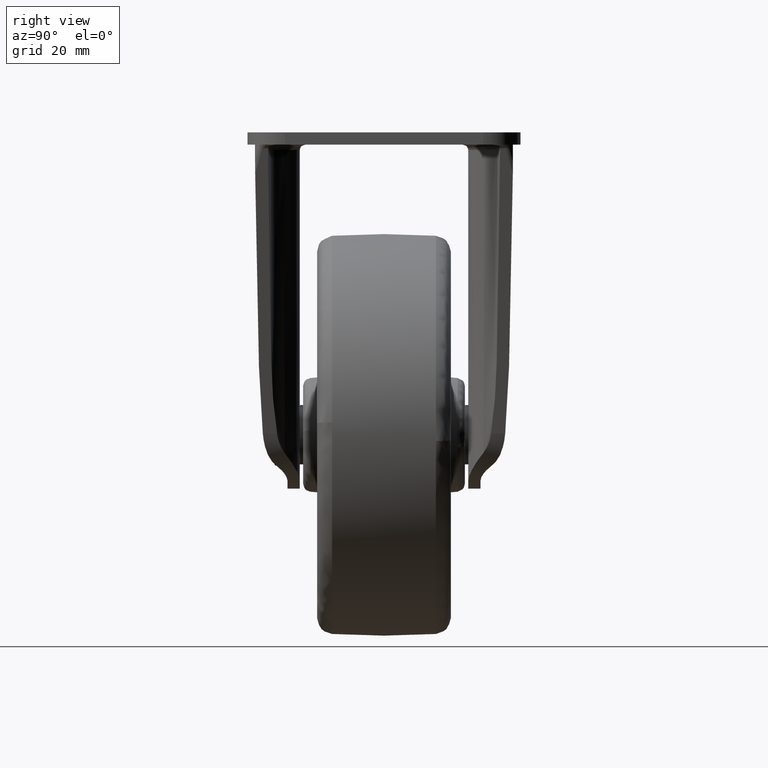
[diagram: clean part render]
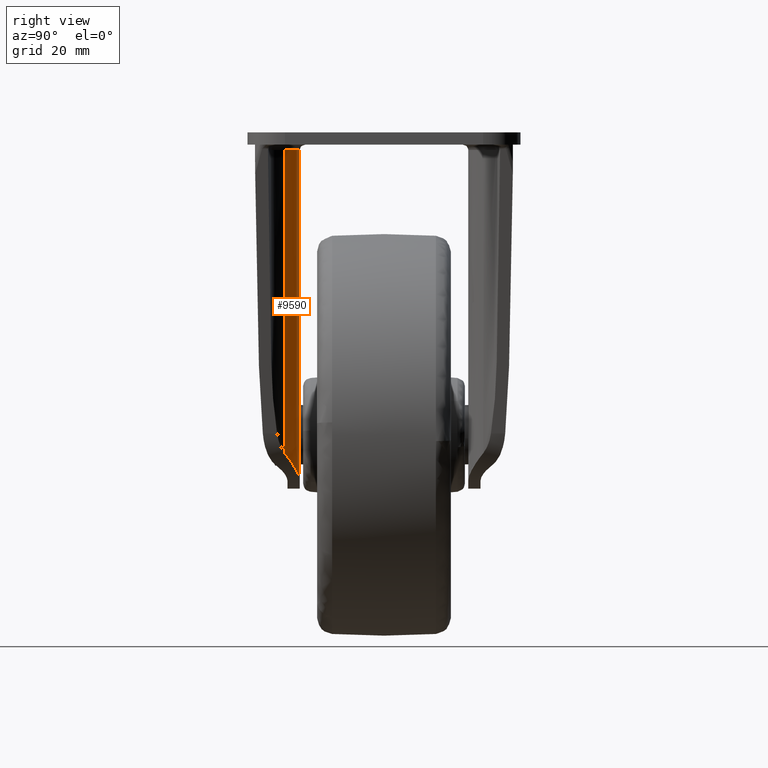
[diagram: same view with one face highlighted and labeled with its STEP entity id]
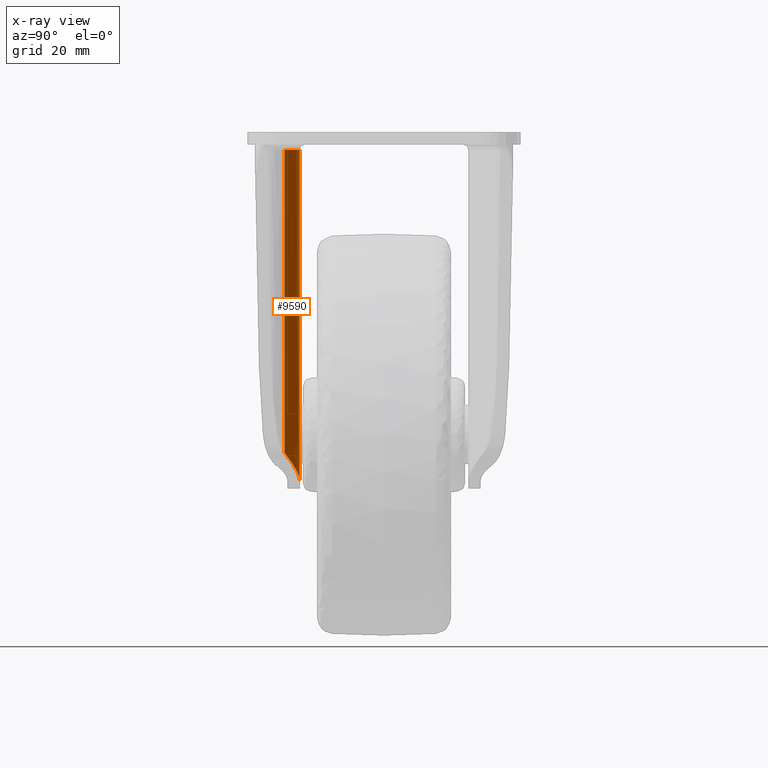
[diagram: x-ray of the same camera — body ghosted, the highlighted face saturated]
A machine part, right view. The second image highlights one B-rep face of the part: STEP entity #9590.
The next image is the same camera in x-ray: the body ghosted, the highlighted face saturated — about 0% of this face is hidden behind the body in this view.
In plain terms, the highlighted face is a freeform B-spline surface patch.
Its self-contained STEP definition (entity closure, byte-faithful):
#7977=CARTESIAN_POINT('',(6.0,-15.725000000000000,-3.300000000000000));
#7978=VERTEX_POINT('',#7977);
#8025=CARTESIAN_POINT('',(11.351696789401281,-18.559973133057149,-3.300000000000000));
#8026=VERTEX_POINT('',#8025);
#8040=CARTESIAN_POINT('',(6.0,-15.725000000000000,-3.300000000000000));
#8041=CARTESIAN_POINT('',(9.426737980748751,-15.725000373743757,-3.300000000000000));
#8042=CARTESIAN_POINT('',(11.351696789401281,-18.559973133057149,-3.300000000000000));
#8050=(BOUNDED_CURVE()B_SPLINE_CURVE(2,(#8040,#8041,#8042),.UNSPECIFIED.,.F.,.U.)CURVE()GEOMETRIC_REPRESENTATION_ITEM()QUASI_UNIFORM_CURVE()RATIONAL_B_SPLINE_CURVE((1.0,0.883670409937065,1.0))REPRESENTATION_ITEM(''));
#8051=EDGE_CURVE('',#7978,#8026,#8050,.T.);
#9318=CARTESIAN_POINT('',(6.0,-15.725000000000000,-65.082561720332805));
#9319=VERTEX_POINT('',#9318);
#9333=CARTESIAN_POINT('',(11.351697890259061,-18.559972385569651,-59.885530280055313));
#9334=VERTEX_POINT('',#9333);
#9335=CARTESIAN_POINT('',(11.351697890259061,-18.559972385569619,-59.885530280055278));
#9336=CARTESIAN_POINT('',(11.283974180258120,-18.460232696627500,-60.006874343749963));
#9337=CARTESIAN_POINT('',(11.213454623829969,-18.362365558172279,-60.128656162013591));
#9338=CARTESIAN_POINT('',(11.066601950734730,-18.170176798261441,-60.372800182898423));
#9339=CARTESIAN_POINT('',(10.990592652635771,-18.076285843763401,-60.494619079020829));
#9340=CARTESIAN_POINT('',(10.755012406680310,-17.801364673473270,-60.858432661187820));
#9341=CARTESIAN_POINT('',(10.587762940303049,-17.626849617433169,-61.099015147402362));
#9342=CARTESIAN_POINT('',(10.231636161338880,-17.295038933026571,-61.575084074653503));
#9343=CARTESIAN_POINT('',(10.042765491551640,-17.137750451689971,-61.810580573168600));
#9344=CARTESIAN_POINT('',(9.741760407541710,-16.915527877779031,-62.159394592496497));
#9345=CARTESIAN_POINT('',(9.638469158526398,-16.843748536786059,-62.274929219601241));
#9346=CARTESIAN_POINT('',(9.425634128754030,-16.705035176061831,-62.504434570449057));
#9347=CARTESIAN_POINT('',(9.315957264544988,-16.638025026991048,-62.618538912310463));
#9348=CARTESIAN_POINT('',(8.977784766801955,-16.445277573618839,-62.957510759903911));
#9349=CARTESIAN_POINT('',(8.742437203610693,-16.329036768933459,-63.176801795176488));
#9350=CARTESIAN_POINT('',(8.250683636275815,-16.123311325962440,-63.601454613845682));
#9351=CARTESIAN_POINT('',(7.994287054636360,-16.033808949885660,-63.806820067291397));
#9352=CARTESIAN_POINT('',(7.592376712705312,-15.922513518481340,-64.103840425753319));
#9353=CARTESIAN_POINT('',(7.455513789426312,-15.889255615797371,-64.201007103439082));
#9354=CARTESIAN_POINT('',(7.175642540737873,-15.831122505422860,-64.391530887112964));
#9355=CARTESIAN_POINT('',(7.032229869325306,-15.806217806313059,-64.485118718952236));
#9356=CARTESIAN_POINT('',(6.598216115980477,-15.746099922025200,-64.756244433756066));
#9357=CARTESIAN_POINT('',(6.302364609412559,-15.725000000000000,-64.925251699981061));
#9358=CARTESIAN_POINT('',(5.999999999999991,-15.725000000000000,-65.082561720332791));
#9359=B_SPLINE_CURVE_WITH_KNOTS('',3,(#9335,#9336,#9337,#9338,#9339,#9340,#9341,#9342,#9343,#9344,#9345,#9346,#9347,#9348,#9349,#9350,#9351,#9352,#9353,#9354,#9355,#9356,#9357,#9358),.UNSPECIFIED.,.F.,.U.,(4,2,2,2,2,2,2,2,2,2,2,4),(0.0,0.062499999999999,0.124999999999999,0.249999999999999,0.374999999999998,0.437499999999998,0.499999999999997,0.624999999999997,0.749999999999998,0.812499999999999,0.874999999999999,1.0),.UNSPECIFIED.);
#9360=EDGE_CURVE('',#9334,#9319,#9359,.T.);
#9551=CARTESIAN_POINT('',(6.0,-15.725000000000000,-65.082561720332805));
#9552=CARTESIAN_POINT('',(6.0,-15.725000000000000,-3.300000000000000));
#9553=QUASI_UNIFORM_CURVE('',1,(#9551,#9552),.UNSPECIFIED.,.F.,.U.);
#9554=EDGE_CURVE('',#9319,#7978,#9553,.T.);
#9566=CARTESIAN_POINT('',(5.810726054857510,-15.727769624747330,-66.627125763341127));
#9567=CARTESIAN_POINT('',(5.810726054857510,-15.727769624747330,-1.716821855916464));
#9568=CARTESIAN_POINT('',(9.557483353512154,-15.618094368948666,-66.627125763341127));
#9569=CARTESIAN_POINT('',(9.557483353512154,-15.618094368948666,-1.716821855916464));
#9570=CARTESIAN_POINT('',(11.515784074390838,-18.814229097548576,-66.627125763341141));
#9571=CARTESIAN_POINT('',(11.515784074390838,-18.814229097548576,-1.716821855916465));
#9579=(BOUNDED_SURFACE()B_SPLINE_SURFACE(1,2,((#9566,#9568,#9570),(#9567,#9569,#9571)),.UNSPECIFIED.,.F.,.F.,.U.)B_SPLINE_SURFACE_WITH_KNOTS((2,2),(3,3),(0.0,64.910303907424677),(0.0,6.955052329906846),.UNSPECIFIED.)GEOMETRIC_REPRESENTATION_ITEM()RATIONAL_B_SPLINE_SURFACE(((1.0,0.861551742443768,0.991500289184859),(1.0,0.861551742443768,0.991500289184859)))REPRESENTATION_ITEM('')SURFACE());
#9580=ORIENTED_EDGE('',*,*,#9554,.T.);
#9581=ORIENTED_EDGE('',*,*,#8051,.T.);
#9582=CARTESIAN_POINT('',(11.351697890259061,-18.559972385569651,-59.885530280055313));
#9583=CARTESIAN_POINT('',(11.351696789401281,-18.559973133057149,-3.300000000000000));
#9584=QUASI_UNIFORM_CURVE('',1,(#9582,#9583),.UNSPECIFIED.,.F.,.U.);
#9585=EDGE_CURVE('',#9334,#8026,#9584,.T.);
#9586=ORIENTED_EDGE('',*,*,#9585,.F.);
#9587=ORIENTED_EDGE('',*,*,#9360,.T.);
#9588=EDGE_LOOP('',(#9580,#9581,#9586,#9587));
#9589=FACE_OUTER_BOUND('',#9588,.T.);
#9590=ADVANCED_FACE('',(#9589),#9579,.T.);